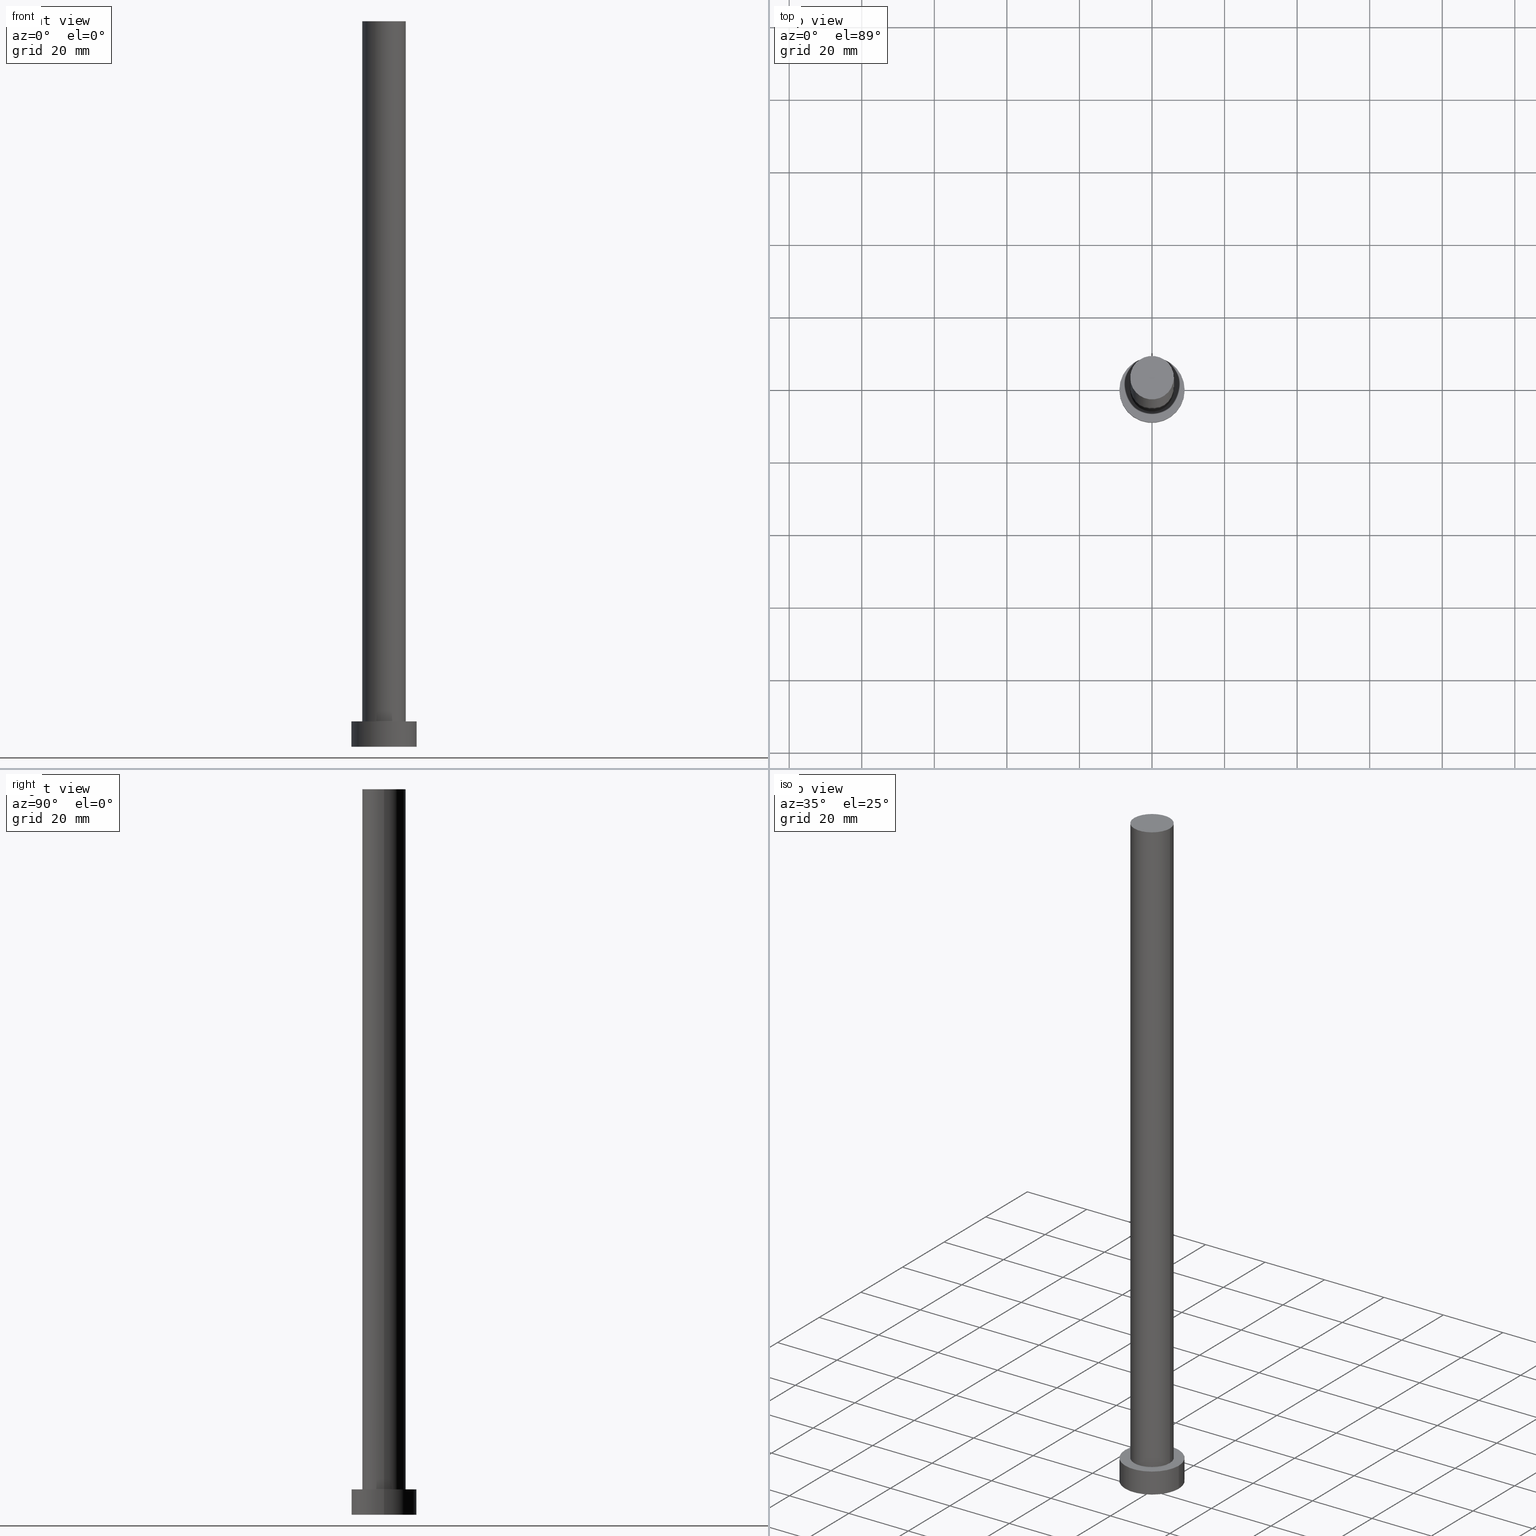
[diagram: canonical four-view strip — front | top / right | iso, engineering-drawing reading convention]
A machine part, canonical four-view strip (front | top / right | iso — engineering-drawing reading convention). The complete STEP part file that produces these views, byte-faithful:
ISO-10303-21;
HEADER;
FILE_DESCRIPTION (( 'STEP AP203' ),
    '1' );
FILE_NAME ('b95e.STEP',
    '2023-02-12T11:06:04',
    ( '' ),
    ( '' ),
    'SwSTEP 2.0',
    'SolidWorks 2019',
    '' );
FILE_SCHEMA (( 'CONFIG_CONTROL_DESIGN' ));
ENDSEC;

DATA;
#1 = CIRCLE ( 'NONE', #62, 9.000000000000000000 ) ;
#2 = DIRECTION ( 'NONE',  ( 0.000000000000000000, 0.000000000000000000, 1.000000000000000000 ) ) ;
#3 = COORDINATED_UNIVERSAL_TIME_OFFSET ( 1, 0, .AHEAD. ) ;
#4 = ORIENTED_EDGE ( 'NONE', *, *, #193, .T. ) ;
#5 = PRODUCT_RELATED_PRODUCT_CATEGORY ( 'detail', '', ( #254 ) ) ;
#6 = DATE_AND_TIME ( #176, #216 ) ;
#7 = CARTESIAN_POINT ( 'NONE',  ( 0.000000000000000000, 0.000000000000000000, 7.000000000000000000 ) ) ;
#8 = APPLICATION_PROTOCOL_DEFINITION ( 'international standard', 'config_control_design', 1994, #151 ) ;
#9 = EDGE_LOOP ( 'NONE', ( #179, #236 ) ) ;
#10 = EDGE_CURVE ( 'NONE', #35, #150, #131, .T. ) ;
#11 = ORIENTED_EDGE ( 'NONE', *, *, #213, .F. ) ;
#12 = PERSON_AND_ORGANIZATION ( #212, #255 ) ;
#13 = CARTESIAN_POINT ( 'NONE',  ( 0.000000000000000000, 0.000000000000000000, 7.000000000000000000 ) ) ;
#14 = PERSON_AND_ORGANIZATION ( #212, #255 ) ;
#15 = ORIENTED_EDGE ( 'NONE', *, *, #206, .F. ) ;
#16 = AXIS2_PLACEMENT_3D ( 'NONE', #250, #134, #120 ) ;
#17 = LINE ( 'NONE', #94, #214 ) ;
#18 = DATE_AND_TIME ( #158, #113 ) ;
#19 = DIRECTION ( 'NONE',  ( 1.000000000000000000, 0.000000000000000000, -0.000000000000000000 ) ) ;
#20 = DIRECTION ( 'NONE',  ( -0.000000000000000000, -0.000000000000000000, -1.000000000000000000 ) ) ;
#21 = CC_DESIGN_PERSON_AND_ORGANIZATION_ASSIGNMENT ( #114, #166, ( #98 ) ) ;
#22 = AXIS2_PLACEMENT_3D ( 'NONE', #99, #2, #103 ) ;
#23 = CC_DESIGN_APPROVAL ( #128, ( #98 ) ) ;
#24 = CIRCLE ( 'NONE', #33, 6.000000000000000888 ) ;
#25 = EDGE_CURVE ( 'NONE', #31, #76, #17, .T. ) ;
#26 = DIRECTION ( 'NONE',  ( 0.000000000000000000, 0.000000000000000000, 1.000000000000000000 ) ) ;
#27 = CARTESIAN_POINT ( 'NONE',  ( 6.000000000000000888, 7.347880794884120722E-16, 7.000000000000000000 ) ) ;
#28 = CC_DESIGN_APPROVAL ( #222, ( #233 ) ) ;
#29 = VERTEX_POINT ( 'NONE', #182 ) ;
#30 = DIRECTION ( 'NONE',  ( -0.000000000000000000, -0.000000000000000000, -1.000000000000000000 ) ) ;
#31 = VERTEX_POINT ( 'NONE', #249 ) ;
#32 = ORIENTED_EDGE ( 'NONE', *, *, #10, .T. ) ;
#33 = AXIS2_PLACEMENT_3D ( 'NONE', #13, #238, #149 ) ;
#34 = ADVANCED_FACE ( 'NONE', ( #88 ), #160, .T. ) ;
#35 = VERTEX_POINT ( 'NONE', #154 ) ;
#36 = ORIENTED_EDGE ( 'NONE', *, *, #135, .F. ) ;
#37 = CYLINDRICAL_SURFACE ( 'NONE', #161, 9.000000000000000000 ) ;
#38 = ADVANCED_BREP_SHAPE_REPRESENTATION ( 'b95e', ( #59, #85 ), #68 ) ;
#39 = LINE ( 'NONE', #96, #237 ) ;
#40 = PLANE ( 'NONE',  #147 ) ;
#41 = CARTESIAN_POINT ( 'NONE',  ( -9.000000000000000000, 0.000000000000000000, 7.000000000000000000 ) ) ;
#42 = ADVANCED_FACE ( 'NONE', ( #192, #190 ), #157, .T. ) ;
#43 = CARTESIAN_POINT ( 'NONE',  ( 0.000000000000000000, 0.000000000000000000, 0.000000000000000000 ) ) ;
#44 = APPROVAL_PERSON_ORGANIZATION ( #101, #222, #175 ) ;
#45 = DIRECTION ( 'NONE',  ( 0.000000000000000000, 0.000000000000000000, 1.000000000000000000 ) ) ;
#46 = PERSON_AND_ORGANIZATION ( #212, #255 ) ;
#47 = DIRECTION ( 'NONE',  ( 1.000000000000000000, 0.000000000000000000, 0.000000000000000000 ) ) ;
#48 = EDGE_CURVE ( 'NONE', #204, #35, #125, .T. ) ;
#49 = ORIENTED_EDGE ( 'NONE', *, *, #110, .T. ) ;
#50 = AXIS2_PLACEMENT_3D ( 'NONE', #217, #45, #235 ) ;
#51 = ADVANCED_FACE ( 'NONE', ( #152 ), #37, .T. ) ;
#52 = PERSON_AND_ORGANIZATION_ROLE ( 'creator' ) ;
#53 = PERSON_AND_ORGANIZATION_ROLE ( 'design_owner' ) ;
#54 = DIRECTION ( 'NONE',  ( -1.000000000000000000, 0.000000000000000000, 0.000000000000000000 ) ) ;
#55 = ADVANCED_FACE ( 'NONE', ( #228 ), #40, .F. ) ;
#56 = DIRECTION ( 'NONE',  ( 1.000000000000000000, 0.000000000000000000, -0.000000000000000000 ) ) ;
#57 = LOCAL_TIME ( 12, 6, 4.000000000000000000, #140 ) ;
#58 = CALENDAR_DATE ( 2023, 12, 2 ) ;
#59 = MANIFOLD_SOLID_BREP ( 'P�idat vysunut�m3', #230 ) ;
#60 = CC_DESIGN_SECURITY_CLASSIFICATION ( #233, ( #98 ) ) ;
#61 = APPROVAL ( #89, 'NEUR�EN�' ) ;
#62 = AXIS2_PLACEMENT_3D ( 'NONE', #43, #26, #105 ) ;
#63 = UNCERTAINTY_MEASURE_WITH_UNIT (LENGTH_MEASURE( 1.000000000000000082E-05 ), #137, 'distance_accuracy_value', 'NONE');
#64 = DATE_TIME_ROLE ( 'creation_date' ) ;
#65 = DIRECTION ( 'NONE',  ( 0.000000000000000000, 0.000000000000000000, 1.000000000000000000 ) ) ;
#66 = CIRCLE ( 'NONE', #102, 9.000000000000000000 ) ;
#67 = VERTEX_POINT ( 'NONE', #95 ) ;
#68 =( GEOMETRIC_REPRESENTATION_CONTEXT ( 3 ) GLOBAL_UNCERTAINTY_ASSIGNED_CONTEXT ( ( #63 ) ) GLOBAL_UNIT_ASSIGNED_CONTEXT ( ( #137, #187, #225 ) ) REPRESENTATION_CONTEXT ( 'NONE', 'WORKASPACE' ) );
#69 = FACE_OUTER_BOUND ( 'NONE', #242, .T. ) ;
#70 = ORIENTED_EDGE ( 'NONE', *, *, #25, .T. ) ;
#71 = PRODUCT_DEFINITION ( 'NEZN�M�', '', #98, #209 ) ;
#72 = ORIENTED_EDGE ( 'NONE', *, *, #173, .F. ) ;
#73 = COORDINATED_UNIVERSAL_TIME_OFFSET ( 1, 0, .AHEAD. ) ;
#74 = COORDINATED_UNIVERSAL_TIME_OFFSET ( 1, 0, .AHEAD. ) ;
#75 = DIRECTION ( 'NONE',  ( -0.000000000000000000, -0.000000000000000000, -1.000000000000000000 ) ) ;
#76 = VERTEX_POINT ( 'NONE', #132 ) ;
#77 = CC_DESIGN_DATE_AND_TIME_ASSIGNMENT ( #165, #64, ( #71 ) ) ;
#78 = CC_DESIGN_PERSON_AND_ORGANIZATION_ASSIGNMENT ( #247, #218, ( #98 ) ) ;
#79 = SHAPE_DEFINITION_REPRESENTATION ( #208, #38 ) ;
#80 = CARTESIAN_POINT ( 'NONE',  ( 0.000000000000000000, 0.000000000000000000, 7.000000000000000000 ) ) ;
#81 = EDGE_CURVE ( 'NONE', #31, #197, #252, .T. ) ;
#82 = AXIS2_PLACEMENT_3D ( 'NONE', #119, #172, #90 ) ;
#83 = EDGE_LOOP ( 'NONE', ( #91, #146, #4, #126 ) ) ;
#84 = DIRECTION ( 'NONE',  ( -0.000000000000000000, -0.000000000000000000, -1.000000000000000000 ) ) ;
#85 = AXIS2_PLACEMENT_3D ( 'NONE', #168, #144, #141 ) ;
#86 = APPLICATION_CONTEXT ( 'configuration controlled 3d designs of mechanical parts and assemblies' ) ;
#87 = ORIENTED_EDGE ( 'NONE', *, *, #193, .F. ) ;
#88 = FACE_OUTER_BOUND ( 'NONE', #196, .T. ) ;
#89 = APPROVAL_STATUS ( 'not_yet_approved' ) ;
#90 = DIRECTION ( 'NONE',  ( 1.000000000000000000, 0.000000000000000000, 0.000000000000000000 ) ) ;
#91 = ORIENTED_EDGE ( 'NONE', *, *, #10, .F. ) ;
#92 = APPROVAL_ROLE ( '' ) ;
#93 = DIRECTION ( 'NONE',  ( 0.000000000000000000, 0.000000000000000000, 1.000000000000000000 ) ) ;
#94 = CARTESIAN_POINT ( 'NONE',  ( 9.000000000000000000, 1.102182119232617714E-15, 7.000000000000000000 ) ) ;
#95 = CARTESIAN_POINT ( 'NONE',  ( -9.000000000000000000, 0.000000000000000000, 0.000000000000000000 ) ) ;
#96 = CARTESIAN_POINT ( 'NONE',  ( -6.000000000000000888, 0.000000000000000000, 200.0000000000000000 ) ) ;
#97 = CIRCLE ( 'NONE', #22, 9.000000000000000000 ) ;
#98 = PRODUCT_DEFINITION_FORMATION_WITH_SPECIFIED_SOURCE ( 'LIBOVOLN�', '', #254, .NOT_KNOWN. ) ;
#99 = CARTESIAN_POINT ( 'NONE',  ( 0.000000000000000000, 0.000000000000000000, 0.000000000000000000 ) ) ;
#100 = AXIS2_PLACEMENT_3D ( 'NONE', #80, #231, #56 ) ;
#101 = PERSON_AND_ORGANIZATION ( #212, #255 ) ;
#102 = AXIS2_PLACEMENT_3D ( 'NONE', #251, #93, #129 ) ;
#103 = DIRECTION ( 'NONE',  ( 1.000000000000000000, 0.000000000000000000, 0.000000000000000000 ) ) ;
#104 = COORDINATED_UNIVERSAL_TIME_OFFSET ( 1, 0, .AHEAD. ) ;
#105 = DIRECTION ( 'NONE',  ( 1.000000000000000000, 0.000000000000000000, 0.000000000000000000 ) ) ;
#106 = DATE_AND_TIME ( #180, #57 ) ;
#107 = ORIENTED_EDGE ( 'NONE', *, *, #173, .T. ) ;
#108 = PERSON_AND_ORGANIZATION ( #212, #255 ) ;
#109 = MECHANICAL_CONTEXT ( 'NONE', #151, 'mechanical' ) ;
#110 = EDGE_CURVE ( 'NONE', #67, #76, #97, .T. ) ;
#111 = CARTESIAN_POINT ( 'NONE',  ( -6.000000000000000888, 0.000000000000000000, 200.0000000000000000 ) ) ;
#112 = EDGE_LOOP ( 'NONE', ( #215, #70, #239, #15 ) ) ;
#113 = LOCAL_TIME ( 12, 6, 4.000000000000000000, #73 ) ;
#114 = PERSON_AND_ORGANIZATION ( #212, #255 ) ;
#115 = CALENDAR_DATE ( 2023, 12, 2 ) ;
#116 = CARTESIAN_POINT ( 'NONE',  ( 6.000000000000000888, 7.347880794884120722E-16, 200.0000000000000000 ) ) ;
#117 = CARTESIAN_POINT ( 'NONE',  ( 0.000000000000000000, 0.000000000000000000, 7.000000000000000000 ) ) ;
#118 = DIRECTION ( 'NONE',  ( -1.000000000000000000, 0.000000000000000000, 0.000000000000000000 ) ) ;
#119 = CARTESIAN_POINT ( 'NONE',  ( 0.000000000000000000, 0.000000000000000000, 7.000000000000000000 ) ) ;
#120 = DIRECTION ( 'NONE',  ( 1.000000000000000000, 0.000000000000000000, 0.000000000000000000 ) ) ;
#121 = PERSON_AND_ORGANIZATION_ROLE ( 'classification_officer' ) ;
#122 = PERSON_AND_ORGANIZATION ( #212, #255 ) ;
#123 = VECTOR ( 'NONE', #127, 1000.000000000000000 ) ;
#124 = EDGE_CURVE ( 'NONE', #76, #67, #1, .T. ) ;
#125 = CIRCLE ( 'NONE', #16, 6.000000000000000888 ) ;
#126 = ORIENTED_EDGE ( 'NONE', *, *, #135, .T. ) ;
#127 = DIRECTION ( 'NONE',  ( -0.000000000000000000, -0.000000000000000000, -1.000000000000000000 ) ) ;
#128 = APPROVAL ( #195, 'NEUR�EN�' ) ;
#129 = DIRECTION ( 'NONE',  ( 1.000000000000000000, 0.000000000000000000, 0.000000000000000000 ) ) ;
#130 = ORIENTED_EDGE ( 'NONE', *, *, #206, .T. ) ;
#131 = LINE ( 'NONE', #116, #123 ) ;
#132 = CARTESIAN_POINT ( 'NONE',  ( 9.000000000000000000, 1.102182119232617714E-15, 0.000000000000000000 ) ) ;
#133 = VECTOR ( 'NONE', #153, 1000.000000000000000 ) ;
#134 = DIRECTION ( 'NONE',  ( 0.000000000000000000, 0.000000000000000000, 1.000000000000000000 ) ) ;
#135 = EDGE_CURVE ( 'NONE', #29, #150, #177, .T. ) ;
#136 = CARTESIAN_POINT ( 'NONE',  ( 0.000000000000000000, 0.000000000000000000, 0.000000000000000000 ) ) ;
#137 =( LENGTH_UNIT ( ) NAMED_UNIT ( * ) SI_UNIT ( .MILLI., .METRE. ) );
#138 = DIRECTION ( 'NONE',  ( -1.000000000000000000, 0.000000000000000000, 0.000000000000000000 ) ) ;
#139 = LOCAL_TIME ( 12, 6, 4.000000000000000000, #3 ) ;
#140 = COORDINATED_UNIVERSAL_TIME_OFFSET ( 1, 0, .AHEAD. ) ;
#141 = DIRECTION ( 'NONE',  ( 1.000000000000000000, 0.000000000000000000, 0.000000000000000000 ) ) ;
#142 = CYLINDRICAL_SURFACE ( 'NONE', #210, 6.000000000000000888 ) ;
#143 = EDGE_LOOP ( 'NONE', ( #36, #11 ) ) ;
#144 = DIRECTION ( 'NONE',  ( 0.000000000000000000, 0.000000000000000000, 1.000000000000000000 ) ) ;
#145 = DIRECTION ( 'NONE',  ( 0.000000000000000000, 0.000000000000000000, 1.000000000000000000 ) ) ;
#146 = ORIENTED_EDGE ( 'NONE', *, *, #48, .F. ) ;
#147 = AXIS2_PLACEMENT_3D ( 'NONE', #136, #184, #19 ) ;
#148 = CC_DESIGN_DATE_AND_TIME_ASSIGNMENT ( #18, #211, ( #233 ) ) ;
#149 = DIRECTION ( 'NONE',  ( 1.000000000000000000, 0.000000000000000000, 0.000000000000000000 ) ) ;
#150 = VERTEX_POINT ( 'NONE', #27 ) ;
#151 = APPLICATION_CONTEXT ( 'configuration controlled 3d designs of mechanical parts and assemblies' ) ;
#152 = FACE_OUTER_BOUND ( 'NONE', #112, .T. ) ;
#153 = DIRECTION ( 'NONE',  ( -0.000000000000000000, -0.000000000000000000, -1.000000000000000000 ) ) ;
#154 = CARTESIAN_POINT ( 'NONE',  ( 6.000000000000000888, 7.347880794884120722E-16, 200.0000000000000000 ) ) ;
#155 = EDGE_CURVE ( 'NONE', #35, #204, #189, .T. ) ;
#156 = AXIS2_PLACEMENT_3D ( 'NONE', #207, #145, #229 ) ;
#157 = PLANE ( 'NONE',  #100 ) ;
#158 = CALENDAR_DATE ( 2023, 12, 2 ) ;
#159 = LOCAL_TIME ( 12, 6, 4.000000000000000000, #74 ) ;
#160 = CYLINDRICAL_SURFACE ( 'NONE', #253, 9.000000000000000000 ) ;
#161 = AXIS2_PLACEMENT_3D ( 'NONE', #117, #20, #188 ) ;
#162 = APPROVAL_PERSON_ORGANIZATION ( #108, #128, #92 ) ;
#163 = CARTESIAN_POINT ( 'NONE',  ( 0.000000000000000000, 0.000000000000000000, 200.0000000000000000 ) ) ;
#164 = ADVANCED_FACE ( 'NONE', ( #178 ), #142, .T. ) ;
#165 = DATE_AND_TIME ( #115, #159 ) ;
#166 = PERSON_AND_ORGANIZATION_ROLE ( 'design_supplier' ) ;
#167 = EDGE_LOOP ( 'NONE', ( #183, #194 ) ) ;
#168 = CARTESIAN_POINT ( 'NONE',  ( 0.000000000000000000, 0.000000000000000000, 0.000000000000000000 ) ) ;
#169 = DATE_AND_TIME ( #58, #139 ) ;
#170 = CARTESIAN_POINT ( 'NONE',  ( 0.000000000000000000, 0.000000000000000000, 200.0000000000000000 ) ) ;
#171 = DIRECTION ( 'NONE',  ( -0.000000000000000000, -0.000000000000000000, -1.000000000000000000 ) ) ;
#172 = DIRECTION ( 'NONE',  ( 0.000000000000000000, 0.000000000000000000, 1.000000000000000000 ) ) ;
#173 = EDGE_CURVE ( 'NONE', #197, #31, #66, .T. ) ;
#174 = APPROVAL_DATE_TIME ( #169, #222 ) ;
#175 = APPROVAL_ROLE ( '' ) ;
#176 = CALENDAR_DATE ( 2023, 12, 2 ) ;
#177 = CIRCLE ( 'NONE', #50, 6.000000000000000888 ) ;
#178 = FACE_OUTER_BOUND ( 'NONE', #83, .T. ) ;
#179 = ORIENTED_EDGE ( 'NONE', *, *, #48, .T. ) ;
#180 = CALENDAR_DATE ( 2023, 12, 2 ) ;
#181 = CC_DESIGN_PERSON_AND_ORGANIZATION_ASSIGNMENT ( #12, #53, ( #254 ) ) ;
#182 = CARTESIAN_POINT ( 'NONE',  ( -6.000000000000000888, 0.000000000000000000, 7.000000000000000000 ) ) ;
#183 = ORIENTED_EDGE ( 'NONE', *, *, #110, .F. ) ;
#184 = DIRECTION ( 'NONE',  ( 0.000000000000000000, 0.000000000000000000, 1.000000000000000000 ) ) ;
#185 = FACE_OUTER_BOUND ( 'NONE', #9, .T. ) ;
#186 = CC_DESIGN_PERSON_AND_ORGANIZATION_ASSIGNMENT ( #122, #121, ( #233 ) ) ;
#187 =( NAMED_UNIT ( * ) PLANE_ANGLE_UNIT ( ) SI_UNIT ( $, .RADIAN. ) );
#188 = DIRECTION ( 'NONE',  ( -1.000000000000000000, 0.000000000000000000, 0.000000000000000000 ) ) ;
#189 = CIRCLE ( 'NONE', #219, 6.000000000000000888 ) ;
#190 = FACE_OUTER_BOUND ( 'NONE', #198, .T. ) ;
#191 = APPROVAL_STATUS ( 'not_yet_approved' ) ;
#192 = FACE_BOUND ( 'NONE', #143, .T. ) ;
#193 = EDGE_CURVE ( 'NONE', #204, #29, #39, .T. ) ;
#194 = ORIENTED_EDGE ( 'NONE', *, *, #124, .F. ) ;
#195 = APPROVAL_STATUS ( 'not_yet_approved' ) ;
#196 = EDGE_LOOP ( 'NONE', ( #221, #72, #130, #49 ) ) ;
#197 = VERTEX_POINT ( 'NONE', #41 ) ;
#198 = EDGE_LOOP ( 'NONE', ( #107, #246 ) ) ;
#199 = APPROVAL_DATE_TIME ( #6, #61 ) ;
#200 = APPLICATION_PROTOCOL_DEFINITION ( 'international standard', 'config_control_design', 1994, #86 ) ;
#201 = AXIS2_PLACEMENT_3D ( 'NONE', #170, #205, #118 ) ;
#202 = ORIENTED_EDGE ( 'NONE', *, *, #155, .F. ) ;
#203 = CYLINDRICAL_SURFACE ( 'NONE', #201, 6.000000000000000888 ) ;
#204 = VERTEX_POINT ( 'NONE', #111 ) ;
#205 = DIRECTION ( 'NONE',  ( -0.000000000000000000, -0.000000000000000000, -1.000000000000000000 ) ) ;
#206 = EDGE_CURVE ( 'NONE', #197, #67, #245, .T. ) ;
#207 = CARTESIAN_POINT ( 'NONE',  ( 0.000000000000000000, 0.000000000000000000, 200.0000000000000000 ) ) ;
#208 = PRODUCT_DEFINITION_SHAPE ( 'NONE', 'NONE',  #71 ) ;
#209 = DESIGN_CONTEXT ( 'detailed design', #86, 'design' ) ;
#210 = AXIS2_PLACEMENT_3D ( 'NONE', #220, #30, #54 ) ;
#211 = DATE_TIME_ROLE ( 'classification_date' ) ;
#212 = PERSON ( 'NEUR�EN�', 'NEUR�EN�', 'NEUR�EN�', ('NEUR�EN�'), ('NEUR�EN�'), ('NEUR�EN�') ) ;
#213 = EDGE_CURVE ( 'NONE', #150, #29, #24, .T. ) ;
#214 = VECTOR ( 'NONE', #171, 1000.000000000000000 ) ;
#215 = ORIENTED_EDGE ( 'NONE', *, *, #81, .F. ) ;
#216 = LOCAL_TIME ( 12, 6, 4.000000000000000000, #104 ) ;
#217 = CARTESIAN_POINT ( 'NONE',  ( 0.000000000000000000, 0.000000000000000000, 7.000000000000000000 ) ) ;
#218 = PERSON_AND_ORGANIZATION_ROLE ( 'creator' ) ;
#219 = AXIS2_PLACEMENT_3D ( 'NONE', #163, #65, #47 ) ;
#220 = CARTESIAN_POINT ( 'NONE',  ( 0.000000000000000000, 0.000000000000000000, 200.0000000000000000 ) ) ;
#221 = ORIENTED_EDGE ( 'NONE', *, *, #25, .F. ) ;
#222 = APPROVAL ( #191, 'NEUR�EN�' ) ;
#223 = ORIENTED_EDGE ( 'NONE', *, *, #213, .T. ) ;
#224 = PLANE ( 'NONE',  #156 ) ;
#225 =( NAMED_UNIT ( * ) SI_UNIT ( $, .STERADIAN. ) SOLID_ANGLE_UNIT ( ) );
#226 = APPROVAL_PERSON_ORGANIZATION ( #14, #61, #244 ) ;
#227 = CC_DESIGN_PERSON_AND_ORGANIZATION_ASSIGNMENT ( #46, #52, ( #71 ) ) ;
#228 = FACE_OUTER_BOUND ( 'NONE', #167, .T. ) ;
#229 = DIRECTION ( 'NONE',  ( 1.000000000000000000, 0.000000000000000000, -0.000000000000000000 ) ) ;
#230 = CLOSED_SHELL ( 'NONE', ( #232, #51, #34, #42, #55, #164, #234 ) ) ;
#231 = DIRECTION ( 'NONE',  ( 0.000000000000000000, 0.000000000000000000, 1.000000000000000000 ) ) ;
#232 = ADVANCED_FACE ( 'NONE', ( #69 ), #203, .T. ) ;
#233 = SECURITY_CLASSIFICATION ( '', '', #240 ) ;
#234 = ADVANCED_FACE ( 'NONE', ( #185 ), #224, .T. ) ;
#235 = DIRECTION ( 'NONE',  ( 1.000000000000000000, 0.000000000000000000, 0.000000000000000000 ) ) ;
#236 = ORIENTED_EDGE ( 'NONE', *, *, #155, .T. ) ;
#237 = VECTOR ( 'NONE', #75, 1000.000000000000000 ) ;
#238 = DIRECTION ( 'NONE',  ( 0.000000000000000000, 0.000000000000000000, 1.000000000000000000 ) ) ;
#239 = ORIENTED_EDGE ( 'NONE', *, *, #124, .T. ) ;
#240 = SECURITY_CLASSIFICATION_LEVEL ( 'unclassified' ) ;
#241 = CARTESIAN_POINT ( 'NONE',  ( -9.000000000000000000, 0.000000000000000000, 7.000000000000000000 ) ) ;
#242 = EDGE_LOOP ( 'NONE', ( #202, #32, #223, #87 ) ) ;
#243 = APPROVAL_DATE_TIME ( #106, #128 ) ;
#244 = APPROVAL_ROLE ( '' ) ;
#245 = LINE ( 'NONE', #241, #133 ) ;
#246 = ORIENTED_EDGE ( 'NONE', *, *, #81, .T. ) ;
#247 = PERSON_AND_ORGANIZATION ( #212, #255 ) ;
#248 = CC_DESIGN_APPROVAL ( #61, ( #71 ) ) ;
#249 = CARTESIAN_POINT ( 'NONE',  ( 9.000000000000000000, 1.102182119232617714E-15, 7.000000000000000000 ) ) ;
#250 = CARTESIAN_POINT ( 'NONE',  ( 0.000000000000000000, 0.000000000000000000, 200.0000000000000000 ) ) ;
#251 = CARTESIAN_POINT ( 'NONE',  ( 0.000000000000000000, 0.000000000000000000, 7.000000000000000000 ) ) ;
#252 = CIRCLE ( 'NONE', #82, 9.000000000000000000 ) ;
#253 = AXIS2_PLACEMENT_3D ( 'NONE', #7, #84, #138 ) ;
#254 = PRODUCT ( 'b95e', 'b95e', '', ( #109 ) ) ;
#255 = ORGANIZATION ( 'NEUR�EN�', 'NEUR�EN�', '' ) ;
ENDSEC;
END-ISO-10303-21;
